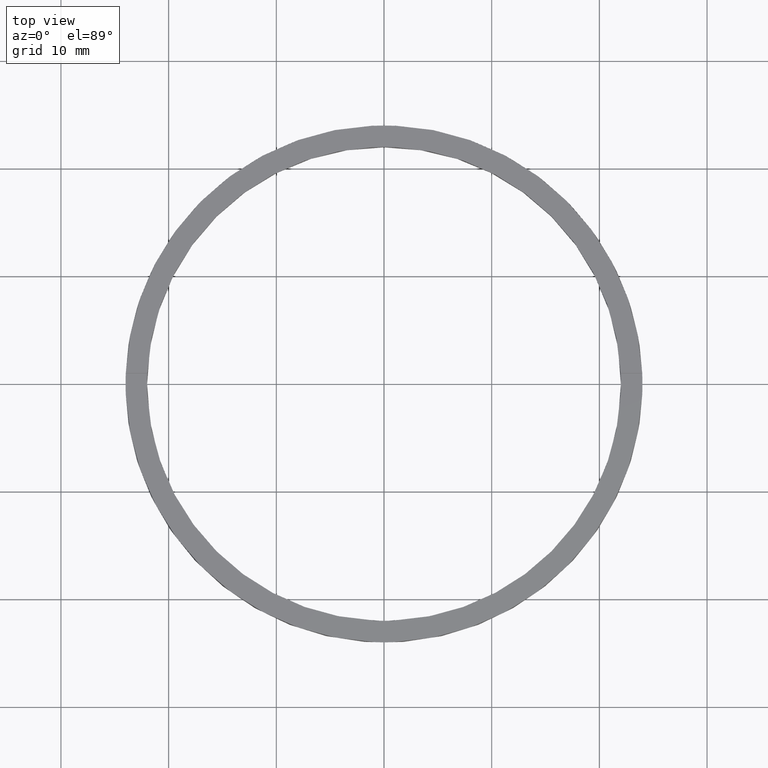
[diagram: clean part render]
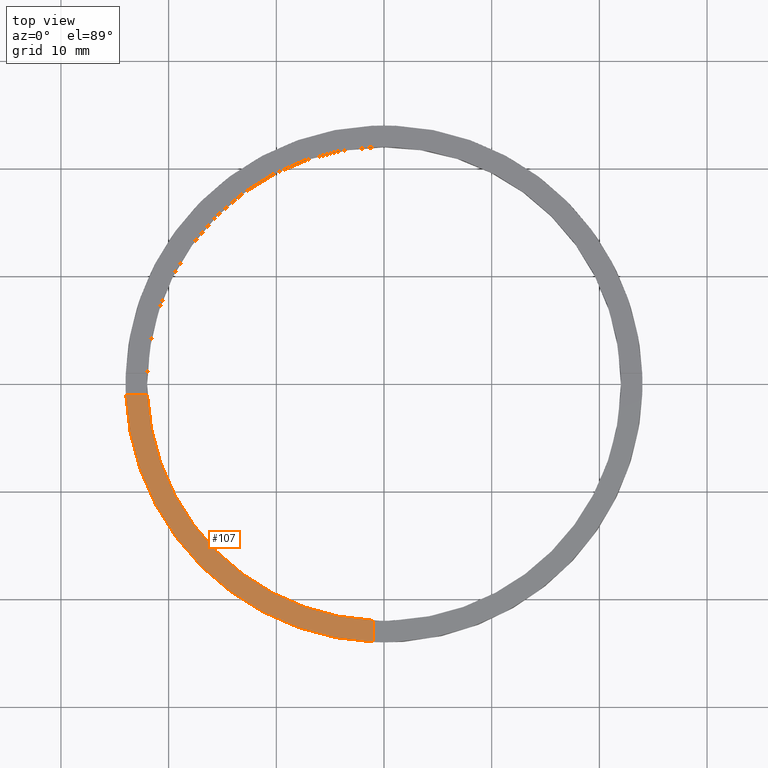
[diagram: same view with one face highlighted and labeled with its STEP entity id]
A machine part, top view. The second image highlights one B-rep face of the part: STEP entity #107.
In plain terms, the highlighted planar face has unit normal (0, 0, 1).
Its self-contained STEP definition (entity closure, byte-faithful):
#34 = DIRECTION ( 'NONE',  ( 0.000000000000000000, 0.000000000000000000, 1.000000000000000000 ) ) ;
#53 = FACE_OUTER_BOUND ( 'NONE', #279, .T. ) ;
#68 = ORIENTED_EDGE ( 'NONE', *, *, #775, .T. ) ;
#96 = VECTOR ( 'NONE', #464, 1000.000000000000000 ) ;
#107 = ADVANCED_FACE ( 'NONE', ( #53 ), #749, .T. ) ;
#125 = DIRECTION ( 'NONE',  ( 1.000000000000000000, 0.000000000000000000, -0.000000000000000000 ) ) ;
#172 = DIRECTION ( 'NONE',  ( 0.000000000000000000, 0.000000000000000000, 1.000000000000000000 ) ) ;
#194 = EDGE_CURVE ( 'NONE', #470, #392, #592, .T. ) ;
#206 = CARTESIAN_POINT ( 'NONE',  ( -23.97915761656360445, -1.000000000000025757, 2.500000000000000000 ) ) ;
#219 = CARTESIAN_POINT ( 'NONE',  ( 0.000000000000000000, 0.000000000000000000, 2.500000000000000000 ) ) ;
#243 = CARTESIAN_POINT ( 'NONE',  ( -1.000000000000160538, -21.97726097583589677, 2.500000000000000000 ) ) ;
#270 = EDGE_CURVE ( 'NONE', #766, #572, #624, .T. ) ;
#279 = EDGE_LOOP ( 'NONE', ( #308, #551, #524, #68 ) ) ;
#302 = CARTESIAN_POINT ( 'NONE',  ( -1.000000000000162093, -14.00000000000018474, 2.500000000000000000 ) ) ;
#308 = ORIENTED_EDGE ( 'NONE', *, *, #194, .F. ) ;
#371 = CARTESIAN_POINT ( 'NONE',  ( -1.000000000000160316, -23.97915761656359379, 2.500000000000000000 ) ) ;
#382 = CARTESIAN_POINT ( 'NONE',  ( -14.00000000000019007, -1.000000000000023981, 2.500000000000000000 ) ) ;
#392 = VERTEX_POINT ( 'NONE', #371 ) ;
#430 = AXIS2_PLACEMENT_3D ( 'NONE', #219, #172, #457 ) ;
#433 = CARTESIAN_POINT ( 'NONE',  ( -21.97726097583590743, -1.000000000000025535, 2.500000000000000000 ) ) ;
#451 = CARTESIAN_POINT ( 'NONE',  ( 0.000000000000000000, 0.000000000000000000, 2.500000000000000000 ) ) ;
#457 = DIRECTION ( 'NONE',  ( 1.000000000000000000, 0.000000000000000000, 0.000000000000000000 ) ) ;
#464 = DIRECTION ( 'NONE',  ( 1.301042606982605074E-16, -1.000000000000000000, 0.000000000000000000 ) ) ;
#470 = VERTEX_POINT ( 'NONE', #243 ) ;
#524 = ORIENTED_EDGE ( 'NONE', *, *, #270, .F. ) ;
#551 = ORIENTED_EDGE ( 'NONE', *, *, #597, .F. ) ;
#572 = VERTEX_POINT ( 'NONE', #433 ) ;
#574 = DIRECTION ( 'NONE',  ( 0.000000000000000000, 0.000000000000000000, 1.000000000000000000 ) ) ;
#592 = LINE ( 'NONE', #302, #96 ) ;
#597 = EDGE_CURVE ( 'NONE', #572, #470, #634, .T. ) ;
#598 = VECTOR ( 'NONE', #650, 1000.000000000000000 ) ;
#624 = LINE ( 'NONE', #382, #598 ) ;
#633 = DIRECTION ( 'NONE',  ( 1.000000000000000000, 0.000000000000000000, 0.000000000000000000 ) ) ;
#634 = CIRCLE ( 'NONE', #649, 22.00000000000000000 ) ;
#649 = AXIS2_PLACEMENT_3D ( 'NONE', #740, #574, #633 ) ;
#650 = DIRECTION ( 'NONE',  ( 1.000000000000000000, 1.734723475976806848E-16, -0.000000000000000000 ) ) ;
#740 = CARTESIAN_POINT ( 'NONE',  ( 0.000000000000000000, 0.000000000000000000, 2.500000000000000000 ) ) ;
#749 = PLANE ( 'NONE',  #754 ) ;
#754 = AXIS2_PLACEMENT_3D ( 'NONE', #451, #34, #125 ) ;
#766 = VERTEX_POINT ( 'NONE', #206 ) ;
#775 = EDGE_CURVE ( 'NONE', #766, #392, #781, .T. ) ;
#781 = CIRCLE ( 'NONE', #430, 24.00000000000000355 ) ;